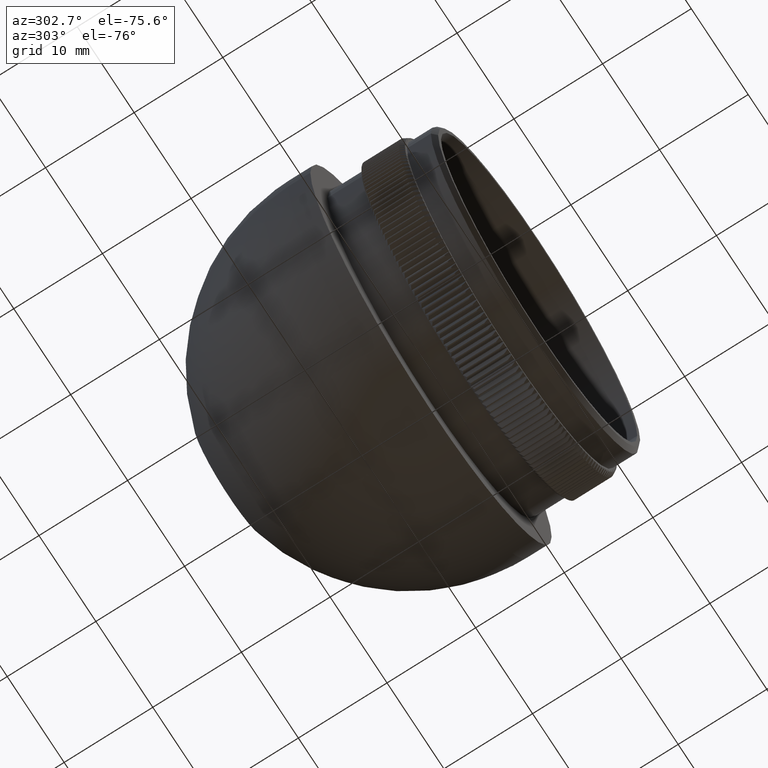
[diagram: clean part render]
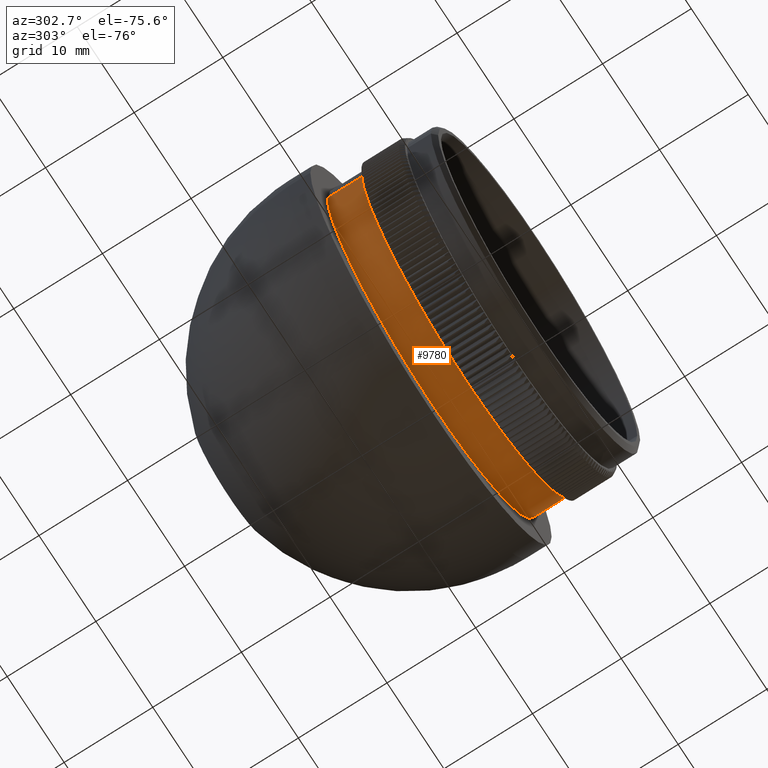
[diagram: same view with one face highlighted and labeled with its STEP entity id]
A machine part, auxiliary view. The second image highlights one B-rep face of the part: STEP entity #9780.
In plain terms, the highlighted cylindrical surface (partial cylindrical patch) has radius 18.25 mm, axis along (-0, -1, -0).
Its self-contained STEP definition (entity closure, byte-faithful):
#1286 = EDGE_LOOP ( 'NONE', ( #3421, #33648, #32254, #3197 ) ) ;
#2511 = CYLINDRICAL_SURFACE ( 'NONE', #30127, 18.25000000000002800 ) ;
#3197 = ORIENTED_EDGE ( 'NONE', *, *, #28436, .F. ) ;
#3259 = LINE ( 'NONE', #18136, #11608 ) ;
#3421 = ORIENTED_EDGE ( 'NONE', *, *, #30048, .F. ) ;
#4653 = EDGE_CURVE ( 'NONE', #30586, #15011, #3259, .T. ) ;
#6918 = LINE ( 'NONE', #20717, #32341 ) ;
#7931 = CARTESIAN_POINT ( 'NONE',  ( 18.25000000000000000, 8.200000000000001100, 0.0000000000000000000 ) ) ;
#8209 = DIRECTION ( 'NONE',  ( -1.388827867340710000E-015, -1.000000000000000000, -0.0000000000000000000 ) ) ;
#8755 = CIRCLE ( 'NONE', #21584, 18.25000000000002500 ) ;
#8765 = VERTEX_POINT ( 'NONE', #10418 ) ;
#9780 = ADVANCED_FACE ( 'NONE', ( #33020 ), #2511, .T. ) ;
#10064 = DIRECTION ( 'NONE',  ( 1.000000000000000000, -1.425800117241209400E-015, 0.0000000000000000000 ) ) ;
#10418 = CARTESIAN_POINT ( 'NONE',  ( -18.25000000000005300, 12.20000000000005300, 2.234980408443922800E-015 ) ) ;
#11608 = VECTOR ( 'NONE', #32633, 1000.000000000000000 ) ;
#12656 = DIRECTION ( 'NONE',  ( -1.388827867340710000E-015, -1.000000000000000000, -0.0000000000000000000 ) ) ;
#15011 = VERTEX_POINT ( 'NONE', #7931 ) ;
#15241 = DIRECTION ( 'NONE',  ( 1.000000000000000000, -1.425800117241208800E-015, 0.0000000000000000000 ) ) ;
#15706 = EDGE_CURVE ( 'NONE', #8765, #30586, #8755, .T. ) ;
#15972 = CARTESIAN_POINT ( 'NONE',  ( -2.777655734681415300E-014, 12.20000000000002600, 0.0000000000000000000 ) ) ;
#16671 = AXIS2_PLACEMENT_3D ( 'NONE', #36120, #12656, #15241 ) ;
#17489 = DIRECTION ( 'NONE',  ( 1.000000000000000000, -1.520853458390623000E-015, 0.0000000000000000000 ) ) ;
#17494 = DIRECTION ( 'NONE',  ( -1.388827867340710000E-015, -1.000000000000000000, -0.0000000000000000000 ) ) ;
#18136 = CARTESIAN_POINT ( 'NONE',  ( 18.25000000000002800, 32.19999999999996700, 0.0000000000000000000 ) ) ;
#19185 = DIRECTION ( 'NONE',  ( -1.388827867340710000E-015, -1.000000000000000000, -0.0000000000000000000 ) ) ;
#19441 = CARTESIAN_POINT ( 'NONE',  ( 18.25000000000000000, 12.20000000000000100, 0.0000000000000000000 ) ) ;
#20717 = CARTESIAN_POINT ( 'NONE',  ( -18.25000000000002800, 32.20000000000001700, 2.234980408443923200E-015 ) ) ;
#21584 = AXIS2_PLACEMENT_3D ( 'NONE', #15972, #19185, #10064 ) ;
#23293 = CIRCLE ( 'NONE', #16671, 18.25000000000003200 ) ;
#25960 = CARTESIAN_POINT ( 'NONE',  ( -18.25000000000006800, 8.200000000000052600, 2.234980408443924300E-015 ) ) ;
#26134 = CARTESIAN_POINT ( 'NONE',  ( 0.0000000000000000000, 32.19999999999999600, 0.0000000000000000000 ) ) ;
#28436 = EDGE_CURVE ( 'NONE', #30420, #15011, #23293, .T. ) ;
#30048 = EDGE_CURVE ( 'NONE', #8765, #30420, #6918, .T. ) ;
#30127 = AXIS2_PLACEMENT_3D ( 'NONE', #26134, #8209, #17489 ) ;
#30420 = VERTEX_POINT ( 'NONE', #25960 ) ;
#30586 = VERTEX_POINT ( 'NONE', #19441 ) ;
#32254 = ORIENTED_EDGE ( 'NONE', *, *, #4653, .T. ) ;
#32341 = VECTOR ( 'NONE', #17494, 1000.000000000000000 ) ;
#32633 = DIRECTION ( 'NONE',  ( -1.388827867340710000E-015, -1.000000000000000000, -0.0000000000000000000 ) ) ;
#33020 = FACE_OUTER_BOUND ( 'NONE', #1286, .T. ) ;
#33648 = ORIENTED_EDGE ( 'NONE', *, *, #15706, .T. ) ;
#36120 = CARTESIAN_POINT ( 'NONE',  ( -3.333186881617699400E-014, 8.200000000000025900, 0.0000000000000000000 ) ) ;